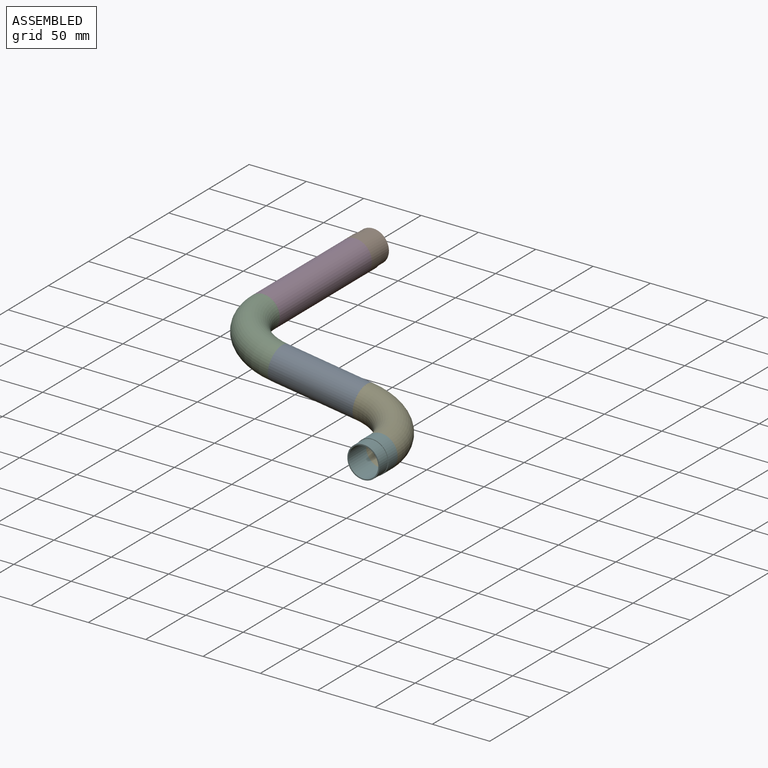
[diagram: assembled view]
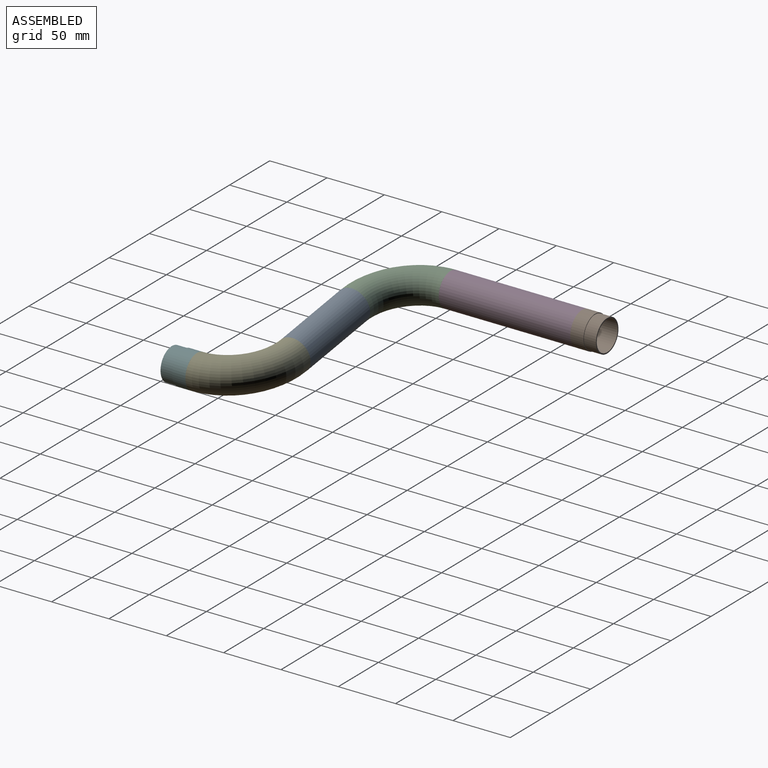
[diagram: assembled view, second angle]
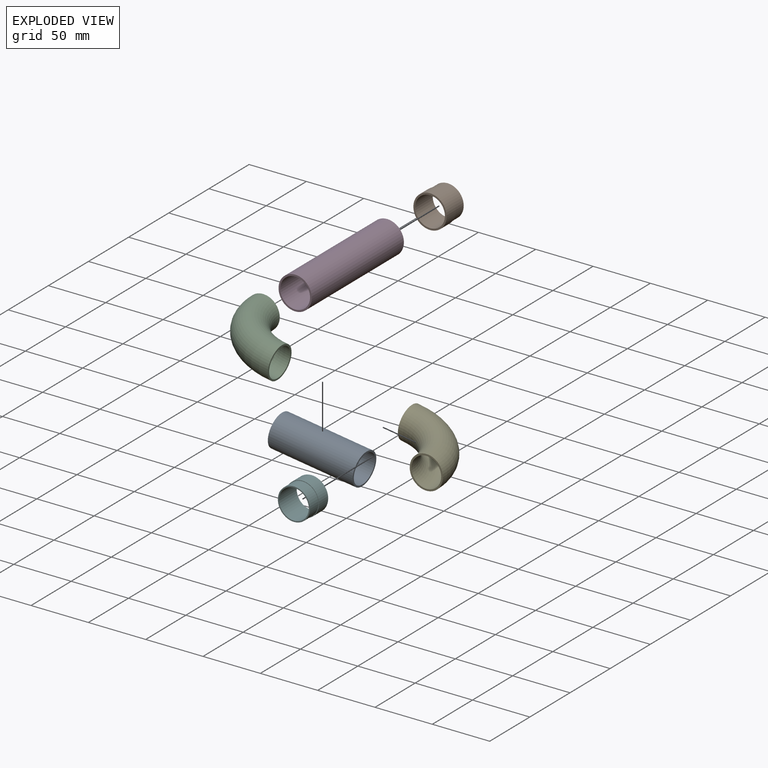
[diagram: exploded view]
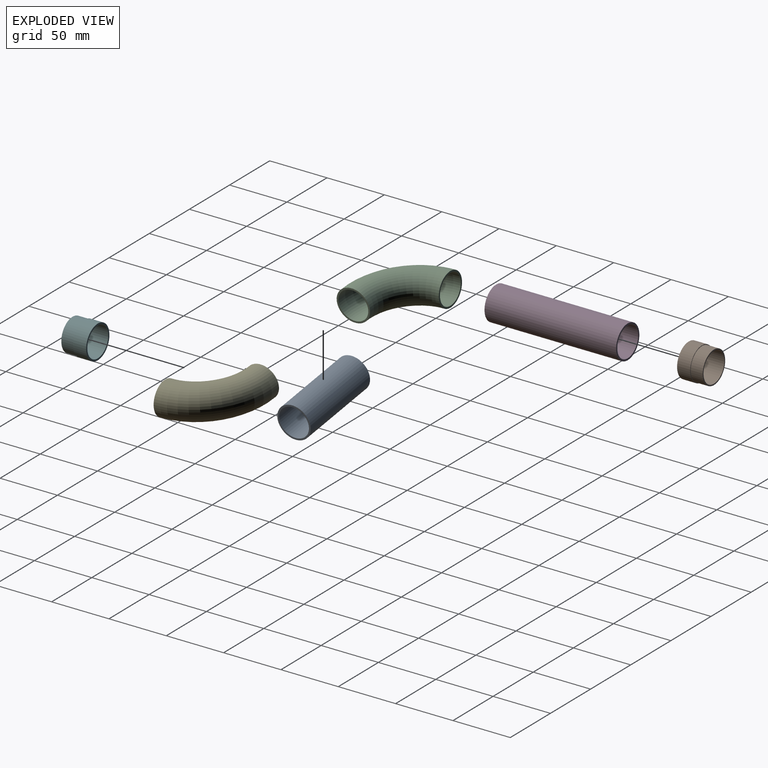
[diagram: exploded view, second angle]
ASSEMBLY  parts=6 mates=5
PART A: 4 faces, bbox 29x74.7x29 mm
  f0: plane 29x29mm, normal (0,-1,0), area 129.6mm2, adj f2,f3
  f1: plane 29x29mm, normal (0,1,0), area 129.6mm2, adj f2,f3
  f2: cylinder r=13mm len=74.69mm, axis (0,1,0), area 6101mm2, adj f0,f1
  f3: cylinder r=14.5mm len=74.69mm, axis (0,1,0), area 6805mm2, adj f0,f1
PART B: 6 faces, bbox 22x29x29 mm
  f0: cylinder r=13mm len=26mm, axis (1,0,0), area 1797mm2, adj f1,f5
  f1: plane 28x28mm, normal (1,0,0), area 84.8mm2, adj f0,f2
  f2: cylinder r=14mm len=28mm, axis (1,0,0), area 923.6mm2, adj f1,f3
  f3: plane 29x29mm, normal (1,0,0), area 44.8mm2, adj f2,f4
  f4: cylinder r=14.5mm len=29mm, axis (1,0,0), area 1047.7mm2, adj f3,f5
  f5: plane 29x29mm, normal (-1,0,0), area 129.6mm2, adj f0,f4
PART C: 4 faces, bbox 69.8x29x69.8 mm
  f0: torus R=50mm, axis (0,1,0), area 6415.2mm2, adj f1,f2
  f1: plane 29x29mm, normal (0,0,-1), area 129.6mm2, adj f0,f3
  f2: plane 29x29mm, normal (1,0,0), area 129.6mm2, adj f0,f3
  f3: torus R=50mm, axis (0,1,0), area 7155.5mm2, adj f1,f2
PART D: 4 faces, bbox 29x114.8x29 mm
  f0: cylinder r=14.5mm len=114.75mm, axis (0,1,0), area 10454.4mm2, adj f2,f3
  f1: cylinder r=13mm len=114.75mm, axis (0,1,0), area 9372.9mm2, adj f2,f3
  f2: plane 29x29mm, normal (0,-1,0), area 129.6mm2, adj f0,f1
  f3: plane 29x29mm, normal (0,1,0), area 129.6mm2, adj f0,f1
PART E: same geometry as C
PART F: same geometry as B
PLACE A rot(axis=(-0.63,-0.55,-0.55),115.3deg) t=(960.87,-158.14,884.19)mm
PLACE B rot(axis=(-0.71,-0.71,0.05),174.1deg) t=(863.06,19.11,1076.78)mm
PLACE C rot(axis=(-0.55,-0.55,0.63),115.3deg) t=(912.53,-108.14,1069.53)mm
PLACE D rot(axis=(0,1,0),8.3deg) t=(610.52,6.61,1113.78)mm
PLACE E rot(axis=(-0.6,0.6,-0.52),124.9deg) t=(986.44,-208.14,1058.7)mm
PLACE F rot(axis=(0.55,-0.55,-0.63),115.3deg) t=(1035.91,-220.64,1051.46)mm
MATE fastened A.f2 <-> C.f1  axis (-0.99,0,0.14) through (912.53,-158.14,1069.53)mm
MATE fastened B.f0 <-> D.f0  axis (0,-1,0) through (863.06,6.61,1076.78)mm
MATE fastened F.f0 <-> E.f2  axis (0,1,0) through (1035.91,-208.14,1051.46)mm
MATE fastened A.f2 <-> E.f1  axis (0.99,0,-0.14) through (986.44,-158.14,1058.7)mm
MATE fastened C.f2 <-> D.f0  axis (0,1,0) through (863.06,-108.14,1076.78)mm
